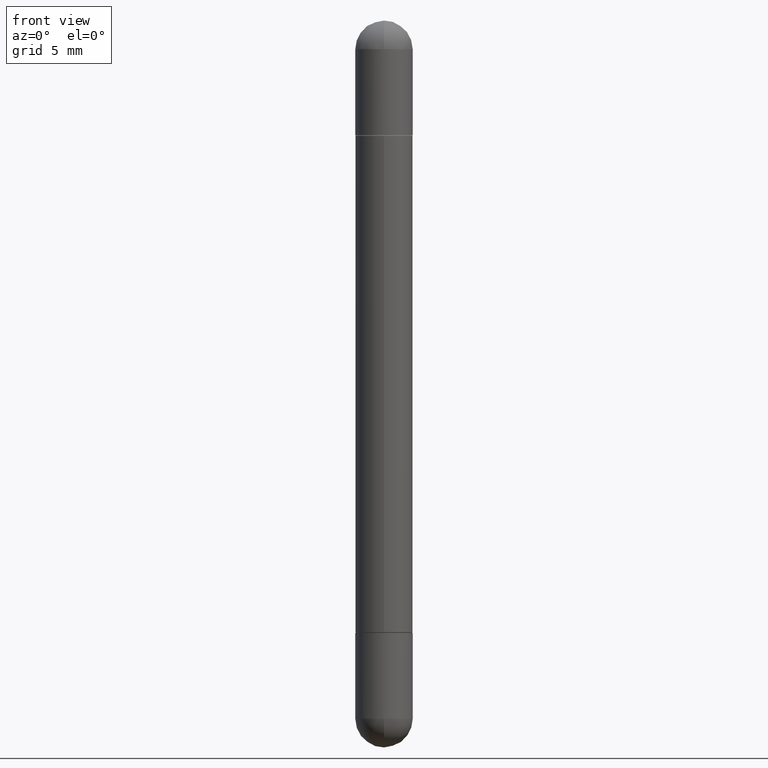
[diagram: clean part render]
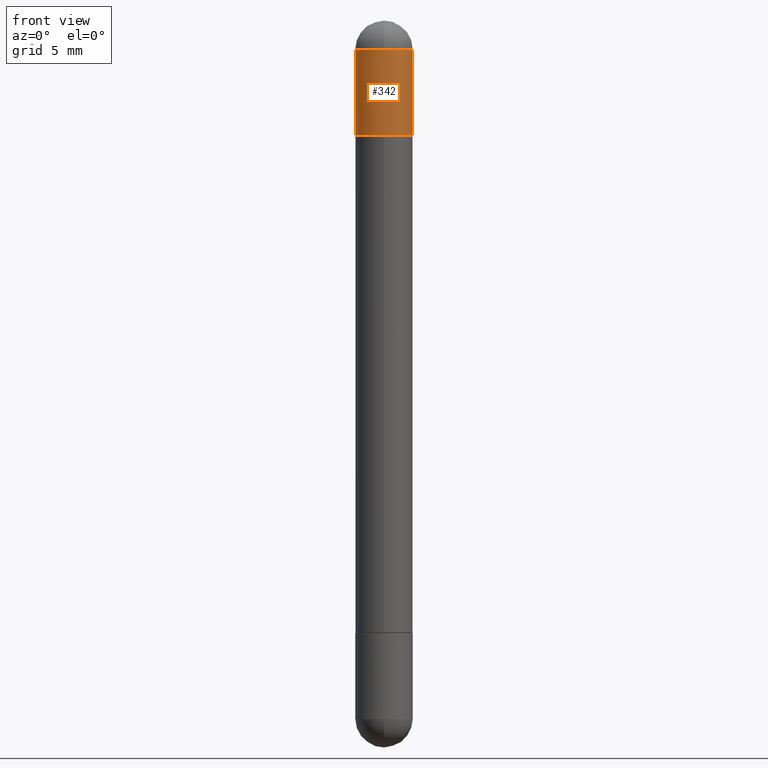
[diagram: same view with one face highlighted and labeled with its STEP entity id]
A machine part, front view. The second image highlights one B-rep face of the part: STEP entity #342.
In plain terms, the highlighted cylindrical surface (edge-blend (fillet) strip) has radius 1.4999 mm, axis along (-0, 0, -1).
Its self-contained STEP definition (entity closure, byte-faithful):
#19 = EDGE_CURVE ( 'NONE', #250, #491, #613, .T. ) ;
#27 = DIRECTION ( 'NONE',  ( 1.000000000000000000, -6.982962677686266711E-15, 0.000000000000000000 ) ) ;
#30 = ORIENTED_EDGE ( 'NONE', *, *, #480, .T. ) ;
#88 = DIRECTION ( 'NONE',  ( -2.445468806185136597E-29, 3.491481338843145583E-15, -1.000000000000000000 ) ) ;
#98 = CIRCLE ( 'NONE', #266, 0.05905000000000001914 ) ;
#103 = CARTESIAN_POINT ( 'NONE',  ( 3.081046148912652946E-29, -4.398917338808479031E-15, -0.2362000000000003264 ) ) ;
#106 = DIRECTION ( 'NONE',  ( 1.000000000000000000, -6.982962677686270655E-15, 0.000000000000000000 ) ) ;
#121 = ORIENTED_EDGE ( 'NONE', *, *, #258, .F. ) ;
#134 = AXIS2_PLACEMENT_3D ( 'NONE', #103, #558, #106 ) ;
#171 = CIRCLE ( 'NONE', #134, 0.05905000000000001914 ) ;
#173 = CARTESIAN_POINT ( 'NONE',  ( 3.514260947928350449E-29, -5.017433257984542594E-15, -0.05905000000000028976 ) ) ;
#212 = DIRECTION ( 'NONE',  ( -2.445468806185136877E-29, 3.491481338843145188E-15, -1.000000000000000000 ) ) ;
#220 = CARTESIAN_POINT ( 'NONE',  ( -0.05905000000000001914, 4.051124067684090655E-16, -1.496100000000000207 ) ) ;
#236 = DIRECTION ( 'NONE',  ( 2.445468806185136597E-29, -3.491481338843145583E-15, 1.000000000000000000 ) ) ;
#243 = EDGE_LOOP ( 'NONE', ( #393, #534, #30, #121, #752 ) ) ;
#245 = CARTESIAN_POINT ( 'NONE',  ( 0.05905000000000001914, -4.811261284925853162E-15, -0.2362000000000003264 ) ) ;
#247 = EDGE_CURVE ( 'NONE', #250, #592, #467, .T. ) ;
#250 = VERTEX_POINT ( 'NONE', #724 ) ;
#258 = EDGE_CURVE ( 'NONE', #682, #463, #605, .T. ) ;
#266 = AXIS2_PLACEMENT_3D ( 'NONE', #173, #295, #561 ) ;
#270 = FACE_OUTER_BOUND ( 'NONE', #243, .T. ) ;
#289 = VECTOR ( 'NONE', #793, 39.37007874015748143 ) ;
#295 = DIRECTION ( 'NONE',  ( 2.445468806185136597E-29, -3.491481338843145583E-15, 1.000000000000000000 ) ) ;
#339 = CARTESIAN_POINT ( 'NONE',  ( 0.05905000000000001914, -4.123439461173741806E-16, -1.496100000000000207 ) ) ;
#342 = ADVANCED_FACE ( 'NONE', ( #270 ), #779, .T. ) ;
#393 = ORIENTED_EDGE ( 'NONE', *, *, #19, .F. ) ;
#463 = VERTEX_POINT ( 'NONE', #245 ) ;
#466 = AXIS2_PLACEMENT_3D ( 'NONE', #563, #236, #817 ) ;
#467 = LINE ( 'NONE', #220, #654 ) ;
#480 = EDGE_CURVE ( 'NONE', #592, #463, #171, .T. ) ;
#485 = AXIS2_PLACEMENT_3D ( 'NONE', #657, #88, #27 ) ;
#491 = VERTEX_POINT ( 'NONE', #618 ) ;
#505 = EDGE_CURVE ( 'NONE', #491, #682, #98, .T. ) ;
#534 = ORIENTED_EDGE ( 'NONE', *, *, #247, .T. ) ;
#558 = DIRECTION ( 'NONE',  ( 2.445468806185136597E-29, -3.491481338843145583E-15, 1.000000000000000000 ) ) ;
#561 = DIRECTION ( 'NONE',  ( 1.000000000000000000, -6.982962677686270655E-15, 0.000000000000000000 ) ) ;
#563 = CARTESIAN_POINT ( 'NONE',  ( 3.514260947928350449E-29, -5.017433257984542594E-15, -0.05905000000000028976 ) ) ;
#592 = VERTEX_POINT ( 'NONE', #696 ) ;
#600 = CARTESIAN_POINT ( 'NONE',  ( 0.05905000000000001914, -5.120519244513884944E-15, -0.05905000000000028976 ) ) ;
#605 = LINE ( 'NONE', #339, #289 ) ;
#613 = CIRCLE ( 'NONE', #466, 0.05905000000000001914 ) ;
#618 = CARTESIAN_POINT ( 'NONE',  ( -4.051124067683763770E-16, -0.05905000000000539678, -0.05905000000000049099 ) ) ;
#654 = VECTOR ( 'NONE', #212, 39.37007874015748143 ) ;
#657 = CARTESIAN_POINT ( 'NONE',  ( 0.000000000000000000, 0.000000000000000000, -1.496100000000000207 ) ) ;
#682 = VERTEX_POINT ( 'NONE', #600 ) ;
#696 = CARTESIAN_POINT ( 'NONE',  ( -0.05905000000000001914, -4.303062891628101254E-15, -0.2362000000000003264 ) ) ;
#724 = CARTESIAN_POINT ( 'NONE',  ( -0.05905000000000001914, -4.303062891628101254E-15, -0.05905000000000028976 ) ) ;
#752 = ORIENTED_EDGE ( 'NONE', *, *, #505, .F. ) ;
#779 = CYLINDRICAL_SURFACE ( 'NONE', #485, 0.05905000000000001914 ) ;
#793 = DIRECTION ( 'NONE',  ( -2.445468806185136877E-29, 3.491481338843145188E-15, -1.000000000000000000 ) ) ;
#817 = DIRECTION ( 'NONE',  ( 1.000000000000000000, -6.982962677686270655E-15, 0.000000000000000000 ) ) ;